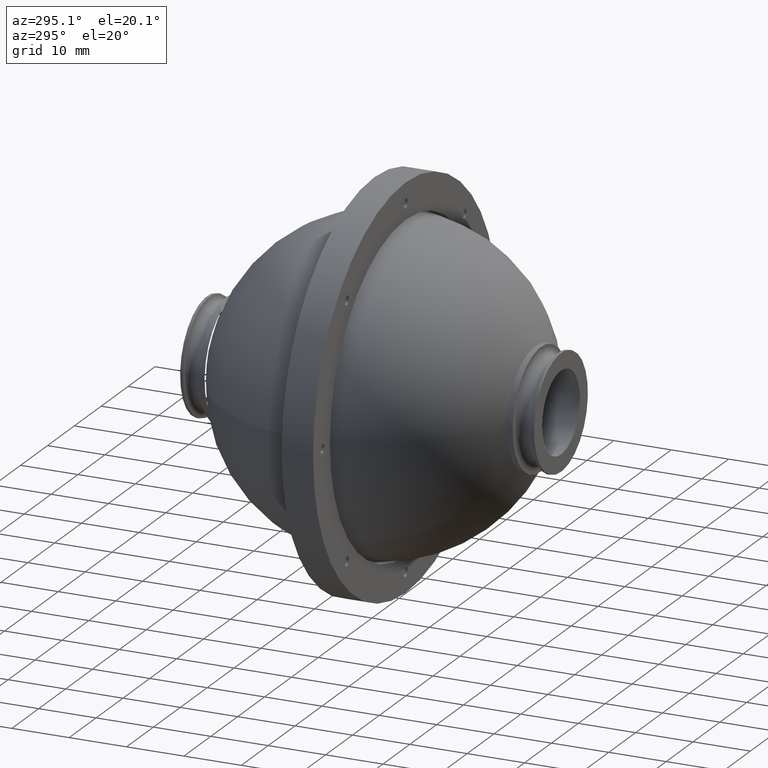
[diagram: clean part render]
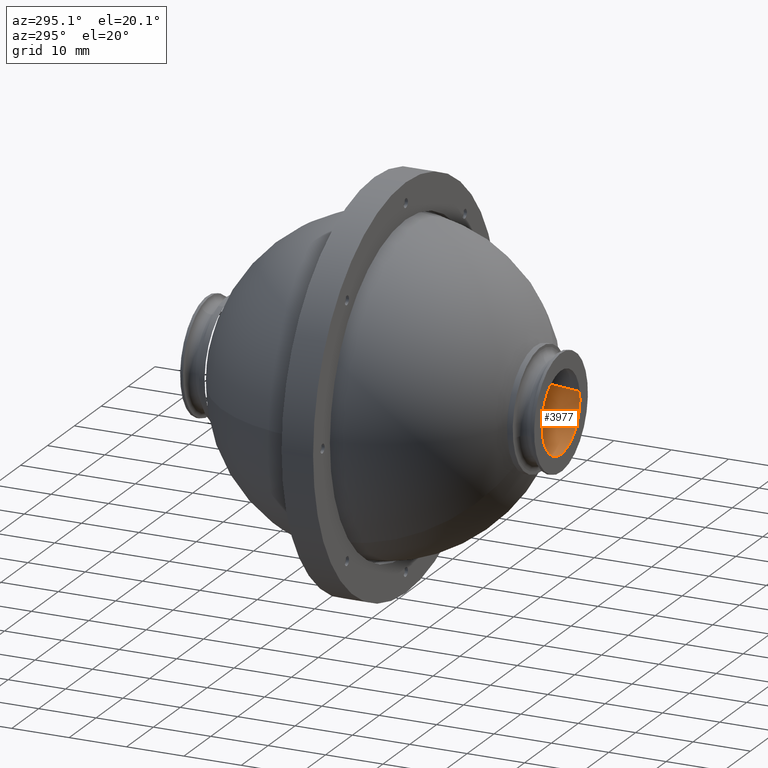
[diagram: same view with one face highlighted and labeled with its STEP entity id]
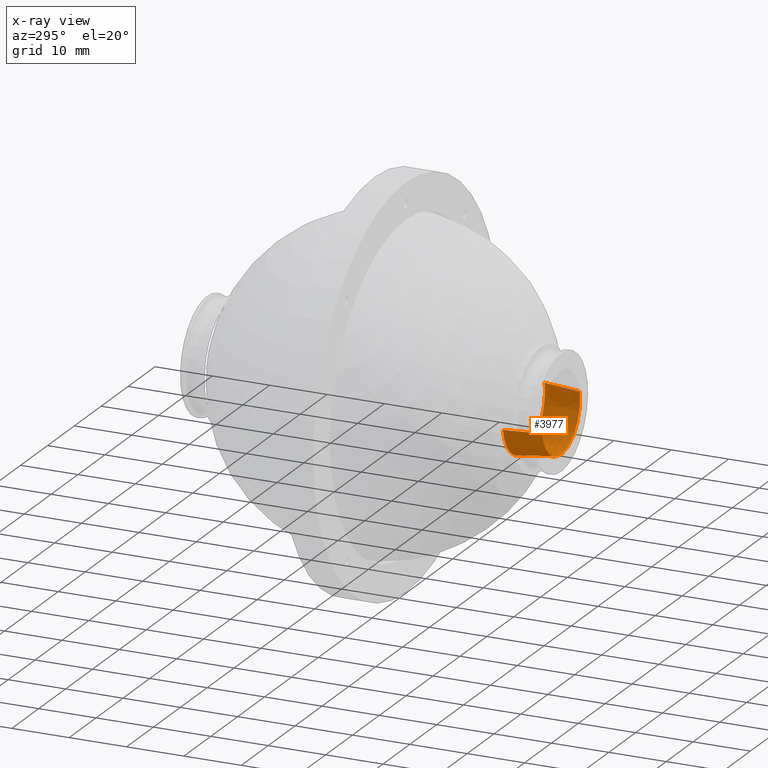
[diagram: x-ray of the same camera — body ghosted, the highlighted face saturated]
A machine part, auxiliary view. The second image highlights one B-rep face of the part: STEP entity #3977.
The next image is the same camera in x-ray: the body ghosted, the highlighted face saturated — about 3% of this face is hidden behind the body in this view.
In plain terms, the highlighted conical surface has half-angle 7.326 deg.
Its self-contained STEP definition (entity closure, byte-faithful):
#3 = ORIENTED_EDGE ( 'NONE', *, *, #6207, .F. ) ;
#70 = DIRECTION ( 'NONE',  ( -0.1255442321949638007, 0.9918357753074259486, -0.02237052933871386956 ) ) ;
#201 = DIRECTION ( 'NONE',  ( 0.1255442321949636897, 0.9918357753074259486, 0.02237052933871402222 ) ) ;
#291 = CARTESIAN_POINT ( 'NONE',  ( 0.7065261504270352599, -42.46425954842823813, -1.385859213153882497 ) ) ;
#292 = AXIS2_PLACEMENT_3D ( 'NONE', #550, #2539, #4995 ) ;
#327 = ORIENTED_EDGE ( 'NONE', *, *, #578, .F. ) ;
#529 = VERTEX_POINT ( 'NONE', #3403 ) ;
#550 = CARTESIAN_POINT ( 'NONE',  ( 8.484018949608305604, -42.46425954842823813, 2.092095039075732620E-15 ) ) ;
#578 = EDGE_CURVE ( 'NONE', #1428, #741, #596, .T. ) ;
#596 = CIRCLE ( 'NONE', #292, 7.900000000000003020 ) ;
#621 = DIRECTION ( 'NONE',  ( -0.9844927593900340002, 0.000000000000000000, -0.1754252168549220725 ) ) ;
#741 = VERTEX_POINT ( 'NONE', #2118 ) ;
#973 = CIRCLE ( 'NONE', #4943, 7.064285714285716722 ) ;
#1179 = CARTESIAN_POINT ( 'NONE',  ( 16.26151174878957661, -42.46425954842823813, 1.385859213153887604 ) ) ;
#1316 = AXIS2_PLACEMENT_3D ( 'NONE', #2262, #6191, #621 ) ;
#1428 = VERTEX_POINT ( 'NONE', #291 ) ;
#1538 = CARTESIAN_POINT ( 'NONE',  ( 0.7065261504270352599, -42.46425954842823813, -1.385859213153882497 ) ) ;
#1627 = CONICAL_SURFACE ( 'NONE', #1316, 7.900000000000002132, 0.1278699185599999621 ) ;
#1637 = FACE_OUTER_BOUND ( 'NONE', #5914, .T. ) ;
#2118 = CARTESIAN_POINT ( 'NONE',  ( 16.26151174878957661, -42.46425954842823813, 1.385859213153887604 ) ) ;
#2262 = CARTESIAN_POINT ( 'NONE',  ( 8.484018949608305604, -42.46425954842823813, 2.092095039075732620E-15 ) ) ;
#2308 = CARTESIAN_POINT ( 'NONE',  ( 8.484018949608305604, -48.96425954842823813, 1.641936909538367253E-15 ) ) ;
#2539 = DIRECTION ( 'NONE',  ( 6.492176973796427489E-17, -1.000000000000000000, -6.925509685190237264E-17 ) ) ;
#2653 = VECTOR ( 'NONE', #201, 1000.000000000000227 ) ;
#3282 = CARTESIAN_POINT ( 'NONE',  ( 15.43875708558505089, -48.96425954842823813, 1.239253853353702306 ) ) ;
#3403 = CARTESIAN_POINT ( 'NONE',  ( 1.529280813631564984, -48.96425954842823813, -1.239253853353697865 ) ) ;
#3527 = VERTEX_POINT ( 'NONE', #3282 ) ;
#3977 = ADVANCED_FACE ( 'NONE', ( #1637 ), #1627, .F. ) ;
#4280 = ORIENTED_EDGE ( 'NONE', *, *, #5224, .T. ) ;
#4511 = LINE ( 'NONE', #1538, #5326 ) ;
#4527 = EDGE_CURVE ( 'NONE', #3527, #529, #973, .T. ) ;
#4943 = AXIS2_PLACEMENT_3D ( 'NONE', #2308, #5333, #6284 ) ;
#4995 = DIRECTION ( 'NONE',  ( 0.9844927593900340002, 0.000000000000000000, 0.1754252168549220448 ) ) ;
#5224 = EDGE_CURVE ( 'NONE', #3527, #741, #6343, .T. ) ;
#5318 = ORIENTED_EDGE ( 'NONE', *, *, #4527, .F. ) ;
#5326 = VECTOR ( 'NONE', #70, 1000.000000000000227 ) ;
#5333 = DIRECTION ( 'NONE',  ( -6.492176973796427489E-17, 1.000000000000000000, 6.925509685190237264E-17 ) ) ;
#5914 = EDGE_LOOP ( 'NONE', ( #5318, #4280, #327, #3 ) ) ;
#6191 = DIRECTION ( 'NONE',  ( -6.492176973796427489E-17, 1.000000000000000000, 6.925509685190237264E-17 ) ) ;
#6207 = EDGE_CURVE ( 'NONE', #529, #1428, #4511, .T. ) ;
#6284 = DIRECTION ( 'NONE',  ( 0.9844927593900340002, 0.000000000000000000, 0.1754252168549220725 ) ) ;
#6343 = LINE ( 'NONE', #1179, #2653 ) ;